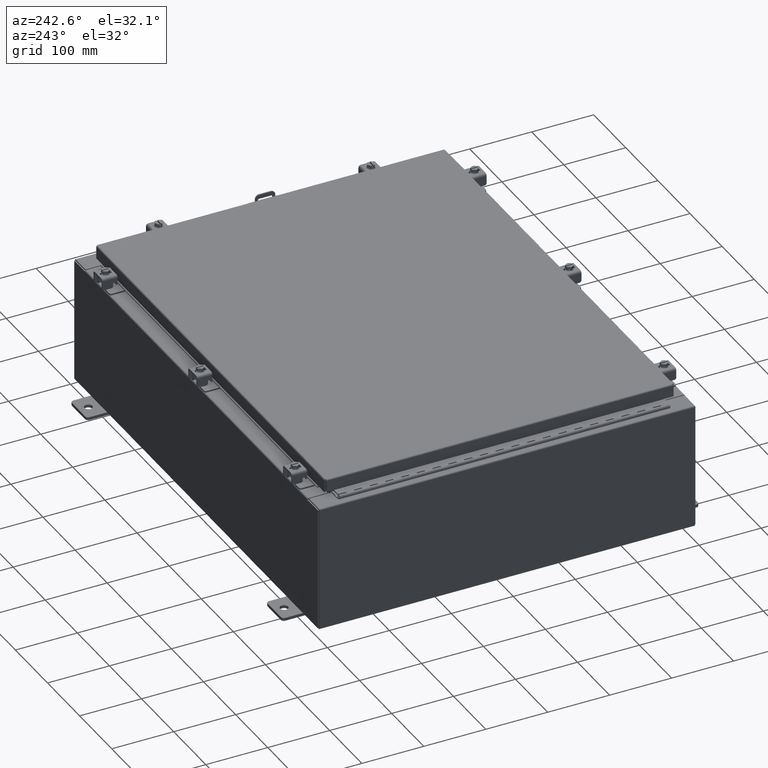
[diagram: clean part render]
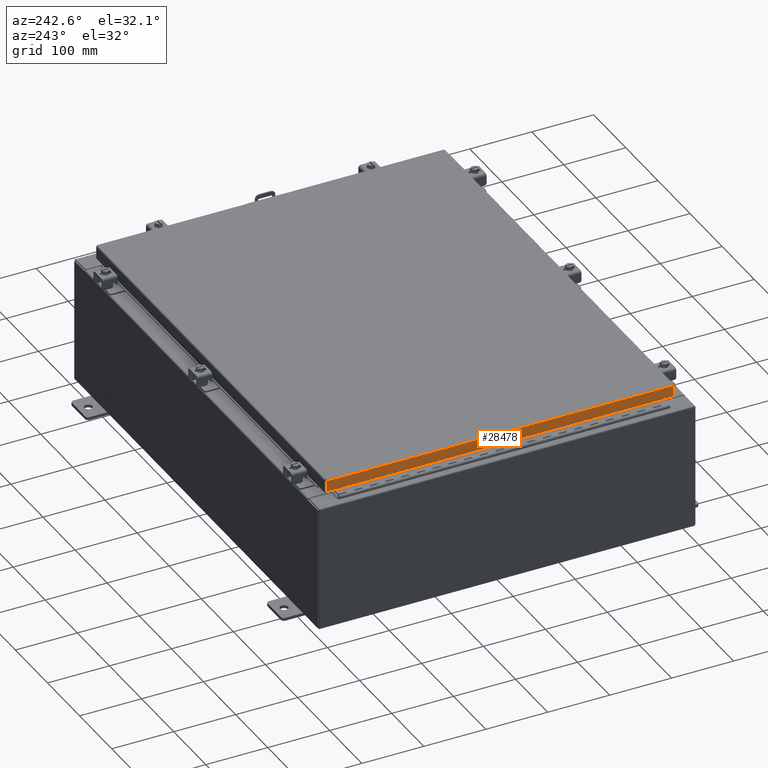
[diagram: same view with one face highlighted and labeled with its STEP entity id]
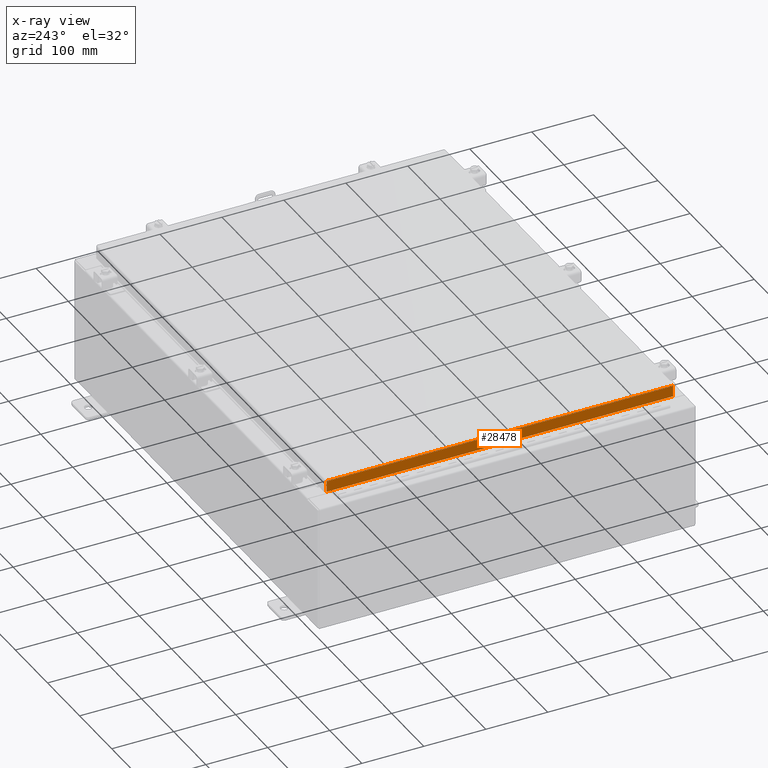
[diagram: x-ray of the same camera — body ghosted, the highlighted face saturated]
A machine part, auxiliary view. The second image highlights one B-rep face of the part: STEP entity #28478.
The next image is the same camera in x-ray: the body ghosted, the highlighted face saturated — about 0% of this face is hidden behind the body in this view.
In plain terms, the highlighted planar face has unit normal (1, 0, -0).
Its self-contained STEP definition (entity closure, byte-faithful):
#258 = CARTESIAN_POINT ( 'NONE',  ( -14.07799999999999900, 11.00515786437627100, -0.7949999999999969300 ) ) ;
#1694 = VERTEX_POINT ( 'NONE', #7963 ) ;
#1984 = LINE ( 'NONE', #18209, #20440 ) ;
#2707 = DIRECTION ( 'NONE',  ( 1.000000000000000000, 3.735695558659274400E-031, -3.034122441942816500E-015 ) ) ;
#3250 = VERTEX_POINT ( 'NONE', #258 ) ;
#4473 = DIRECTION ( 'NONE',  ( 4.379057701015054300E-047, 1.000000000000000000, 1.231227687788112300E-016 ) ) ;
#7522 = VERTEX_POINT ( 'NONE', #7558 ) ;
#7558 = CARTESIAN_POINT ( 'NONE',  ( -14.07799999999999800, 11.00515786437626900, -0.08770000000000004200 ) ) ;
#7770 = CARTESIAN_POINT ( 'NONE',  ( -14.07799999999999800, 11.00515786437626700, 1.198237960226675300E-013 ) ) ;
#7963 = CARTESIAN_POINT ( 'NONE',  ( -14.07799999999999900, -11.00515786437626700, -0.7949999999999996000 ) ) ;
#8156 = ORIENTED_EDGE ( 'NONE', *, *, #25863, .T. ) ;
#10204 = FACE_OUTER_BOUND ( 'NONE', #14262, .T. ) ;
#11119 = ORIENTED_EDGE ( 'NONE', *, *, #27858, .F. ) ;
#11286 = VERTEX_POINT ( 'NONE', #25711 ) ;
#11354 = VECTOR ( 'NONE', #25316, 39.37007874015748100 ) ;
#12382 = EDGE_CURVE ( 'NONE', #7522, #11286, #1984, .T. ) ;
#12684 = PLANE ( 'NONE',  #25785 ) ;
#13216 = DIRECTION ( 'NONE',  ( 3.735695558659274900E-031, -1.000000000000000000, -1.101212895818006000E-045 ) ) ;
#14072 = LINE ( 'NONE', #30307, #19932 ) ;
#14262 = EDGE_LOOP ( 'NONE', ( #23956, #8156, #22413, #11119 ) ) ;
#15183 = CARTESIAN_POINT ( 'NONE',  ( -14.07799999999999800, -5.259112207480525900E-030, 4.297518939368254200E-014 ) ) ;
#15695 = LINE ( 'NONE', #19464, #28320 ) ;
#18209 = CARTESIAN_POINT ( 'NONE',  ( -14.07799999999999800, -11.09400000000000100, -0.08770000000000004200 ) ) ;
#19464 = CARTESIAN_POINT ( 'NONE',  ( -14.07799999999999900, -11.09400000000000100, -0.7949999999999997100 ) ) ;
#19932 = VECTOR ( 'NONE', #20295, 39.37007874015748100 ) ;
#20254 = DIRECTION ( 'NONE',  ( -3.034122441942816500E-015, 0.0000000000000000000, -1.000000000000000000 ) ) ;
#20295 = DIRECTION ( 'NONE',  ( -3.034122441942816500E-015, 6.982962677686265900E-015, -1.000000000000000000 ) ) ;
#20440 = VECTOR ( 'NONE', #13216, 39.37007874015748100 ) ;
#22413 = ORIENTED_EDGE ( 'NONE', *, *, #28290, .F. ) ;
#23956 = ORIENTED_EDGE ( 'NONE', *, *, #12382, .F. ) ;
#25316 = DIRECTION ( 'NONE',  ( -3.034122441942816500E-015, 6.982962677686265900E-015, -1.000000000000000000 ) ) ;
#25711 = CARTESIAN_POINT ( 'NONE',  ( -14.07799999999999800, -11.00515786437626900, -0.08770000000000007000 ) ) ;
#25785 = AXIS2_PLACEMENT_3D ( 'NONE', #15183, #2707, #20254 ) ;
#25863 = EDGE_CURVE ( 'NONE', #7522, #3250, #32196, .T. ) ;
#27858 = EDGE_CURVE ( 'NONE', #11286, #1694, #14072, .T. ) ;
#28290 = EDGE_CURVE ( 'NONE', #1694, #3250, #15695, .T. ) ;
#28320 = VECTOR ( 'NONE', #4473, 39.37007874015748100 ) ;
#28478 = ADVANCED_FACE ( 'NONE', ( #10204 ), #12684, .F. ) ;
#30307 = CARTESIAN_POINT ( 'NONE',  ( -14.07799999999999800, -11.00515786437627100, -0.07469999999999976700 ) ) ;
#32196 = LINE ( 'NONE', #7770, #11354 ) ;